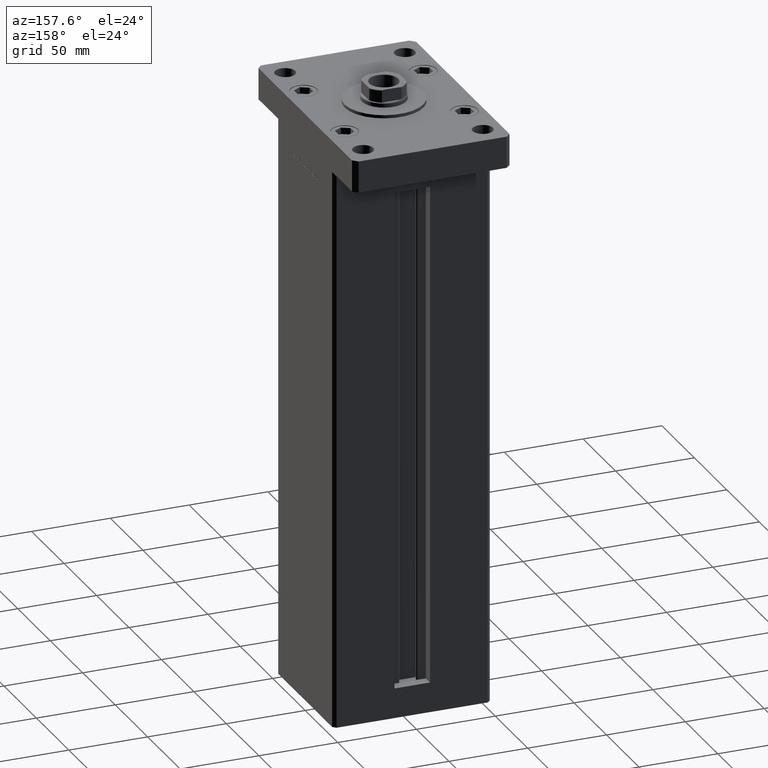
[diagram: clean part render]
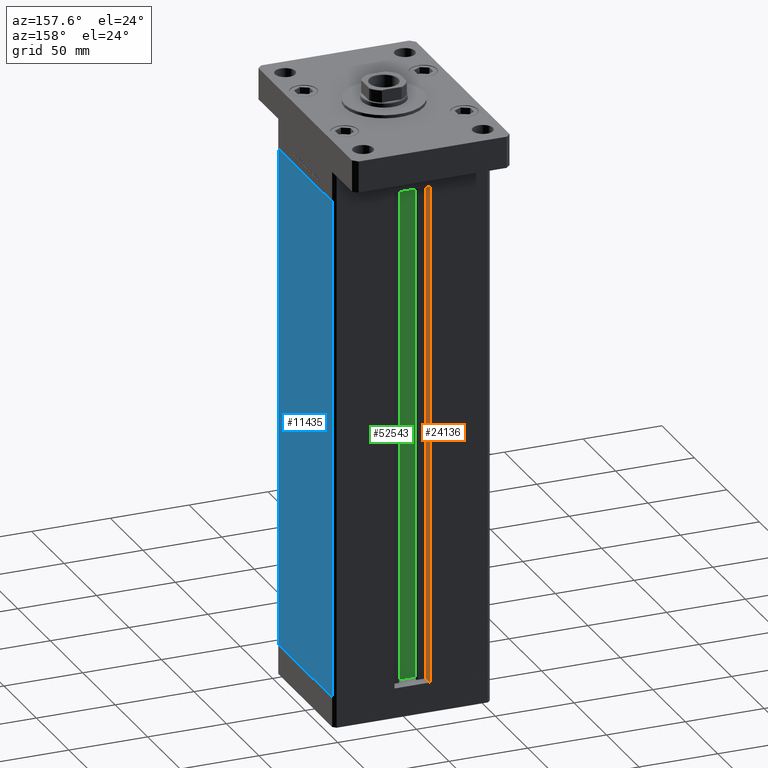
[diagram: same view with three faces highlighted in distinct colors, each labeled with its STEP entity id]
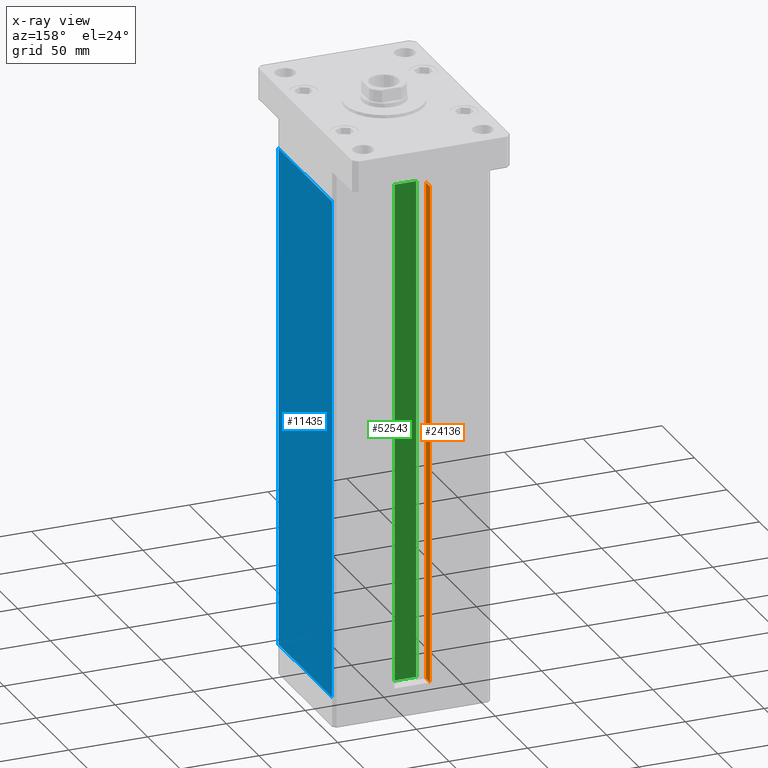
[diagram: x-ray of the same camera — body ghosted, the three highlighted faces saturated]
A machine part, auxiliary view with three faces highlighted in distinct colors.
The next image is the same camera in x-ray (body ghosted, the three faces saturated) — at least one of them is partly hidden behind the body in this view.
Their STEP definitions:

[orange] entity #24136 — the highlighted planar face has unit normal (-1, 0, 0).
#799 = DIRECTION ( 'NONE',  ( -1.000000000000000000, 0.000000000000000000, 0.000000000000000000 ) ) ;
#1742 = ORIENTED_EDGE ( 'NONE', *, *, #4535, .F. ) ;
#4535 = EDGE_CURVE ( 'NONE', #27473, #32548, #12423, .T. ) ;
#5332 = DIRECTION ( 'NONE',  ( -0.000000000000000000, -1.000000000000000000, -0.000000000000000000 ) ) ;
#8636 = VERTEX_POINT ( 'NONE', #41377 ) ;
#8963 = PLANE ( 'NONE',  #14302 ) ;
#9445 = DIRECTION ( 'NONE',  ( 0.000000000000000000, 1.000000000000000000, 0.000000000000000000 ) ) ;
#9979 = CARTESIAN_POINT ( 'NONE',  ( -11.24999999999999822, 43.50000000000000000, 0.000000000000000000 ) ) ;
#12423 = LINE ( 'NONE', #23891, #21553 ) ;
#13060 = CARTESIAN_POINT ( 'NONE',  ( -11.24999999999999822, 36.99999999999999289, 0.000000000000000000 ) ) ;
#14302 = AXIS2_PLACEMENT_3D ( 'NONE', #13060, #799, #38722 ) ;
#16499 = EDGE_CURVE ( 'NONE', #32548, #8636, #34021, .T. ) ;
#17333 = LINE ( 'NONE', #46544, #31172 ) ;
#17686 = EDGE_CURVE ( 'NONE', #46629, #8636, #52777, .T. ) ;
#19496 = CARTESIAN_POINT ( 'NONE',  ( -11.24999999999999822, 43.50000000000000000, 0.000000000000000000 ) ) ;
#21553 = VECTOR ( 'NONE', #28815, 1000.000000000000000 ) ;
#22766 = EDGE_LOOP ( 'NONE', ( #1742, #44802, #46291, #31157 ) ) ;
#22868 = VECTOR ( 'NONE', #9445, 1000.000000000000000 ) ;
#23891 = CARTESIAN_POINT ( 'NONE',  ( -11.24999999999999822, 36.99999999999999289, 0.000000000000000000 ) ) ;
#24136 = ADVANCED_FACE ( 'NONE', ( #32714 ), #8963, .F. ) ;
#27473 = VERTEX_POINT ( 'NONE', #33058 ) ;
#28815 = DIRECTION ( 'NONE',  ( -0.000000000000000000, -0.000000000000000000, 1.000000000000000000 ) ) ;
#31157 = ORIENTED_EDGE ( 'NONE', *, *, #16499, .F. ) ;
#31172 = VECTOR ( 'NONE', #5332, 1000.000000000000000 ) ;
#32548 = VERTEX_POINT ( 'NONE', #52715 ) ;
#32714 = FACE_OUTER_BOUND ( 'NONE', #22766, .T. ) ;
#33058 = CARTESIAN_POINT ( 'NONE',  ( -11.24999999999999822, 36.99999999999999289, 0.000000000000000000 ) ) ;
#34021 = LINE ( 'NONE', #53915, #22868 ) ;
#34973 = EDGE_CURVE ( 'NONE', #46629, #27473, #17333, .T. ) ;
#38641 = VECTOR ( 'NONE', #53590, 1000.000000000000000 ) ;
#38722 = DIRECTION ( 'NONE',  ( 0.000000000000000000, 0.000000000000000000, 1.000000000000000000 ) ) ;
#41377 = CARTESIAN_POINT ( 'NONE',  ( -11.24999999999999822, 43.50000000000000000, 318.5000000000000000 ) ) ;
#44802 = ORIENTED_EDGE ( 'NONE', *, *, #34973, .F. ) ;
#46291 = ORIENTED_EDGE ( 'NONE', *, *, #17686, .T. ) ;
#46544 = CARTESIAN_POINT ( 'NONE',  ( -11.24999999999999822, 36.99999999999999289, 0.000000000000000000 ) ) ;
#46629 = VERTEX_POINT ( 'NONE', #9979 ) ;
#52715 = CARTESIAN_POINT ( 'NONE',  ( -11.24999999999999822, 36.99999999999999289, 318.5000000000000000 ) ) ;
#52777 = LINE ( 'NONE', #19496, #38641 ) ;
#53590 = DIRECTION ( 'NONE',  ( -0.000000000000000000, -0.000000000000000000, 1.000000000000000000 ) ) ;
#53915 = CARTESIAN_POINT ( 'NONE',  ( -11.24999999999999822, 0.000000000000000000, 318.5000000000000000 ) ) ;

[blue] entity #11435 — the highlighted planar face has unit normal (1, -0, 0).
#6054 = DIRECTION ( 'NONE',  ( -0.000000000000000000, -0.000000000000000000, -1.000000000000000000 ) ) ;
#6755 = VECTOR ( 'NONE', #36979, 1000.000000000000000 ) ;
#6791 = VERTEX_POINT ( 'NONE', #22230 ) ;
#7769 = LINE ( 'NONE', #11594, #6755 ) ;
#8164 = VERTEX_POINT ( 'NONE', #46474 ) ;
#8905 = EDGE_CURVE ( 'NONE', #6791, #30483, #44848, .T. ) ;
#9613 = CARTESIAN_POINT ( 'NONE',  ( 50.00000000000001421, 41.49999999999999289, 318.5000000000000000 ) ) ;
#11435 = ADVANCED_FACE ( 'NONE', ( #52802 ), #28273, .T. ) ;
#11594 = CARTESIAN_POINT ( 'NONE',  ( 49.99999999999998579, -41.49999999999999289, 318.5000000000000000 ) ) ;
#12024 = EDGE_CURVE ( 'NONE', #8164, #6791, #43710, .T. ) ;
#15035 = ORIENTED_EDGE ( 'NONE', *, *, #12024, .F. ) ;
#19082 = CARTESIAN_POINT ( 'NONE',  ( 50.00000000000001421, 41.49999999999999289, 318.5000000000000000 ) ) ;
#20831 = CARTESIAN_POINT ( 'NONE',  ( 50.00000000000001421, 41.49999999999999289, 0.000000000000000000 ) ) ;
#22230 = CARTESIAN_POINT ( 'NONE',  ( 50.00000000000001421, 41.49999999999999289, 0.000000000000000000 ) ) ;
#22428 = VECTOR ( 'NONE', #37486, 1000.000000000000000 ) ;
#23458 = LINE ( 'NONE', #19082, #49492 ) ;
#26295 = ORIENTED_EDGE ( 'NONE', *, *, #8905, .F. ) ;
#28273 = PLANE ( 'NONE',  #35514 ) ;
#28379 = CARTESIAN_POINT ( 'NONE',  ( 49.99999999999998579, -41.49999999999999289, 318.5000000000000000 ) ) ;
#30483 = VERTEX_POINT ( 'NONE', #47389 ) ;
#31125 = DIRECTION ( 'NONE',  ( -3.344045254895050973E-16, -1.000000000000000000, 0.000000000000000000 ) ) ;
#32528 = ORIENTED_EDGE ( 'NONE', *, *, #39192, .T. ) ;
#35514 = AXIS2_PLACEMENT_3D ( 'NONE', #53069, #53345, #53613 ) ;
#36979 = DIRECTION ( 'NONE',  ( -0.000000000000000000, -0.000000000000000000, -1.000000000000000000 ) ) ;
#37486 = DIRECTION ( 'NONE',  ( -3.344045254895050973E-16, -1.000000000000000000, 0.000000000000000000 ) ) ;
#38710 = VERTEX_POINT ( 'NONE', #28379 ) ;
#39192 = EDGE_CURVE ( 'NONE', #38710, #30483, #7769, .T. ) ;
#39358 = ORIENTED_EDGE ( 'NONE', *, *, #40644, .T. ) ;
#40644 = EDGE_CURVE ( 'NONE', #8164, #38710, #23458, .T. ) ;
#43710 = LINE ( 'NONE', #9613, #49494 ) ;
#44848 = LINE ( 'NONE', #20831, #22428 ) ;
#46474 = CARTESIAN_POINT ( 'NONE',  ( 50.00000000000001421, 41.49999999999999289, 318.5000000000000000 ) ) ;
#47389 = CARTESIAN_POINT ( 'NONE',  ( 49.99999999999998579, -41.49999999999999289, 0.000000000000000000 ) ) ;
#49492 = VECTOR ( 'NONE', #31125, 1000.000000000000000 ) ;
#49494 = VECTOR ( 'NONE', #6054, 1000.000000000000000 ) ;
#51130 = EDGE_LOOP ( 'NONE', ( #26295, #15035, #39358, #32528 ) ) ;
#52802 = FACE_OUTER_BOUND ( 'NONE', #51130, .T. ) ;
#53069 = CARTESIAN_POINT ( 'NONE',  ( 50.00000000000001421, 41.49999999999999289, 318.5000000000000000 ) ) ;
#53345 = DIRECTION ( 'NONE',  ( 1.000000000000000000, -3.344045254895050480E-16, 0.000000000000000000 ) ) ;
#53613 = DIRECTION ( 'NONE',  ( 3.344045254895050480E-16, 1.000000000000000000, 0.000000000000000000 ) ) ;

[green] entity #52543 — the highlighted planar face has unit normal (0, -1, 0).
#45 = PLANE ( 'NONE',  #20063 ) ;
#454 = CARTESIAN_POINT ( 'NONE',  ( -6.876153656360465050, 32.99999999999986500, 318.5000000000000000 ) ) ;
#505 = LINE ( 'NONE', #13041, #39331 ) ;
#761 = LINE ( 'NONE', #29135, #19766 ) ;
#1553 = LINE ( 'NONE', #47892, #20301 ) ;
#3430 = EDGE_CURVE ( 'NONE', #41594, #52702, #761, .T. ) ;
#3449 = EDGE_CURVE ( 'NONE', #44347, #41594, #45763, .T. ) ;
#12387 = ORIENTED_EDGE ( 'NONE', *, *, #3449, .F. ) ;
#13041 = CARTESIAN_POINT ( 'NONE',  ( 6.876153656360465050, 32.99999999999986500, 0.000000000000000000 ) ) ;
#14799 = CARTESIAN_POINT ( 'NONE',  ( 6.876153656360465050, 32.99999999999986500, 0.000000000000000000 ) ) ;
#15563 = VERTEX_POINT ( 'NONE', #51905 ) ;
#17374 = DIRECTION ( 'NONE',  ( -0.000000000000000000, -0.000000000000000000, 1.000000000000000000 ) ) ;
#17510 = EDGE_CURVE ( 'NONE', #15563, #52702, #1553, .T. ) ;
#19766 = VECTOR ( 'NONE', #50941, 1000.000000000000000 ) ;
#20063 = AXIS2_PLACEMENT_3D ( 'NONE', #33327, #37691, #49946 ) ;
#20301 = VECTOR ( 'NONE', #51458, 1000.000000000000000 ) ;
#23842 = EDGE_LOOP ( 'NONE', ( #12387, #28106, #34395, #45904 ) ) ;
#25852 = CARTESIAN_POINT ( 'NONE',  ( 6.876153656360465050, 32.99999999999986500, 0.000000000000000000 ) ) ;
#28106 = ORIENTED_EDGE ( 'NONE', *, *, #50821, .F. ) ;
#29135 = CARTESIAN_POINT ( 'NONE',  ( 0.000000000000000000, 32.99999999999986500, 318.5000000000000000 ) ) ;
#32689 = CARTESIAN_POINT ( 'NONE',  ( 6.876153656360465050, 32.99999999999986500, 318.5000000000000000 ) ) ;
#33327 = CARTESIAN_POINT ( 'NONE',  ( 6.876153656360465050, 32.99999999999986500, 0.000000000000000000 ) ) ;
#34395 = ORIENTED_EDGE ( 'NONE', *, *, #17510, .T. ) ;
#36330 = VECTOR ( 'NONE', #17374, 1000.000000000000000 ) ;
#37421 = FACE_OUTER_BOUND ( 'NONE', #23842, .T. ) ;
#37691 = DIRECTION ( 'NONE',  ( 0.000000000000000000, -1.000000000000000000, -0.000000000000000000 ) ) ;
#39331 = VECTOR ( 'NONE', #47403, 1000.000000000000000 ) ;
#41594 = VERTEX_POINT ( 'NONE', #32689 ) ;
#44347 = VERTEX_POINT ( 'NONE', #14799 ) ;
#45763 = LINE ( 'NONE', #25852, #36330 ) ;
#45904 = ORIENTED_EDGE ( 'NONE', *, *, #3430, .F. ) ;
#47403 = DIRECTION ( 'NONE',  ( 1.000000000000000000, -0.000000000000000000, -0.000000000000000000 ) ) ;
#47892 = CARTESIAN_POINT ( 'NONE',  ( -6.876153656360465050, 32.99999999999986500, 0.000000000000000000 ) ) ;
#49946 = DIRECTION ( 'NONE',  ( 0.000000000000000000, 0.000000000000000000, -1.000000000000000000 ) ) ;
#50821 = EDGE_CURVE ( 'NONE', #15563, #44347, #505, .T. ) ;
#50941 = DIRECTION ( 'NONE',  ( -1.000000000000000000, 0.000000000000000000, 0.000000000000000000 ) ) ;
#51458 = DIRECTION ( 'NONE',  ( -0.000000000000000000, -0.000000000000000000, 1.000000000000000000 ) ) ;
#51905 = CARTESIAN_POINT ( 'NONE',  ( -6.876153656360465050, 32.99999999999986500, 0.000000000000000000 ) ) ;
#52543 = ADVANCED_FACE ( 'NONE', ( #37421 ), #45, .F. ) ;
#52702 = VERTEX_POINT ( 'NONE', #454 ) ;